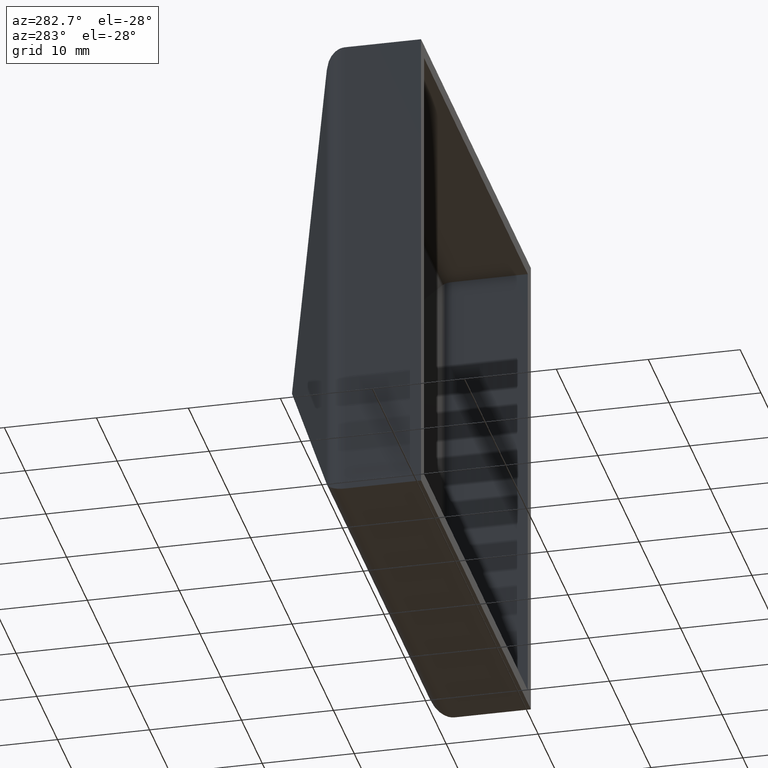
[diagram: clean part render]
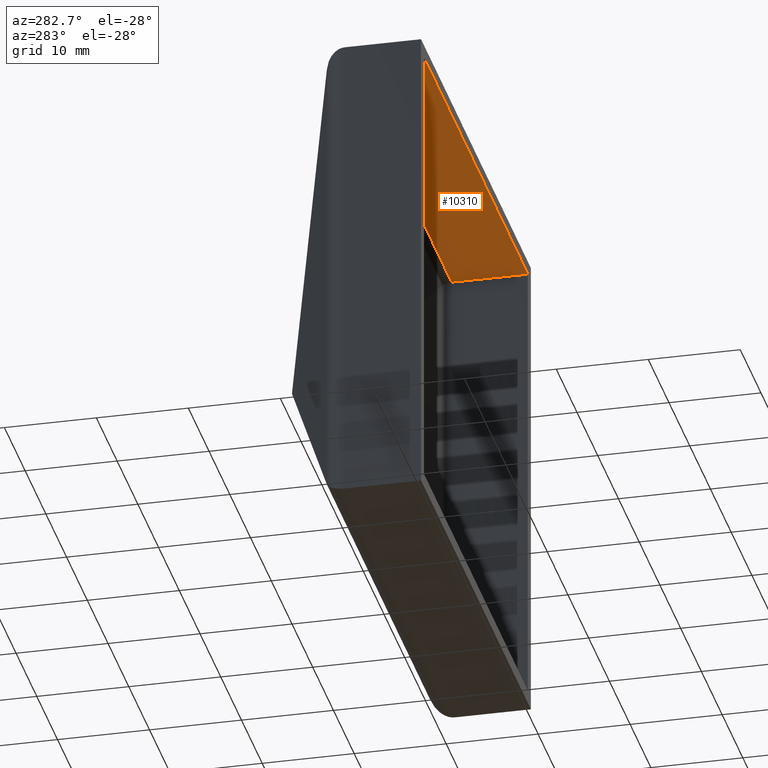
[diagram: same view with one face highlighted and labeled with its STEP entity id]
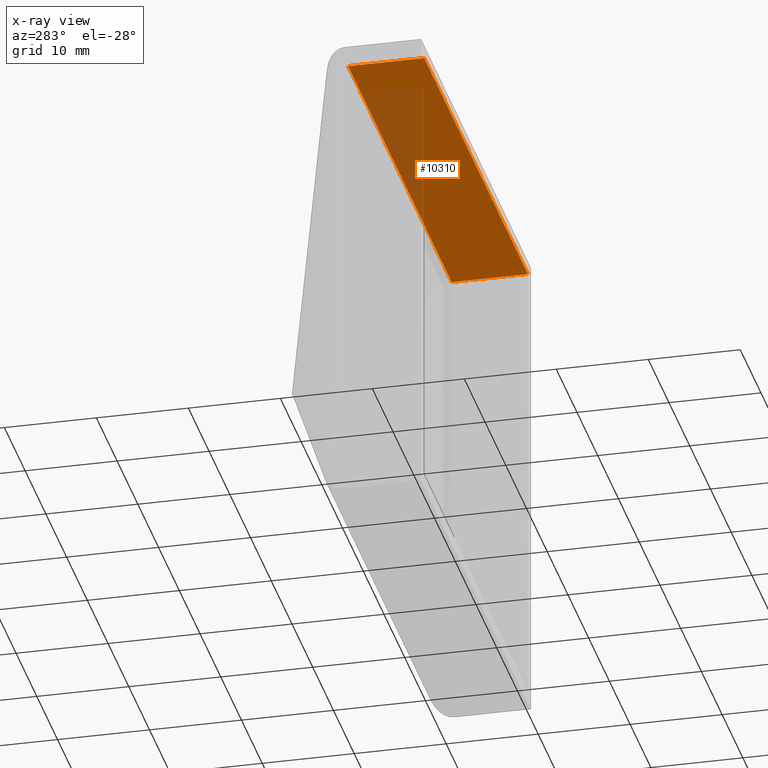
[diagram: x-ray of the same camera — body ghosted, the highlighted face saturated]
A machine part, auxiliary view. The second image highlights one B-rep face of the part: STEP entity #10310.
The next image is the same camera in x-ray: the body ghosted, the highlighted face saturated — about 26% of this face is hidden behind the body in this view.
In plain terms, the highlighted planar face has unit normal (0, 0, -1).
Its self-contained STEP definition (entity closure, byte-faithful):
#174 = ORIENTED_EDGE ( 'NONE', *, *, #8489, .F. ) ;
#427 = CARTESIAN_POINT ( 'NONE',  ( -26.49999999999999289, 25.00000000000000000, 25.00000000000000000 ) ) ;
#873 = CARTESIAN_POINT ( 'NONE',  ( -24.99999999999999289, 8.271739631613602484, 25.00000000000001421 ) ) ;
#1057 = ORIENTED_EDGE ( 'NONE', *, *, #9832, .F. ) ;
#1254 = DIRECTION ( 'NONE',  ( 1.000000000000000000, -0.000000000000000000, -4.440892098500625669E-16 ) ) ;
#1621 = FACE_OUTER_BOUND ( 'NONE', #2111, .T. ) ;
#1867 = DIRECTION ( 'NONE',  ( 0.000000000000000000, -1.000000000000000000, 0.000000000000000000 ) ) ;
#1979 = VERTEX_POINT ( 'NONE', #4930 ) ;
#2004 = VERTEX_POINT ( 'NONE', #873 ) ;
#2111 = EDGE_LOOP ( 'NONE', ( #10710, #8798, #174, #1057 ) ) ;
#2514 = CARTESIAN_POINT ( 'NONE',  ( 25.00000000000000000, 8.271739631613600707, 25.00000000000000000 ) ) ;
#3959 = CARTESIAN_POINT ( 'NONE',  ( -26.50000000000001066, 8.271739631613602484, 25.00000000000001421 ) ) ;
#4128 = VECTOR ( 'NONE', #1254, 1000.000000000000000 ) ;
#4241 = CARTESIAN_POINT ( 'NONE',  ( -26.49999999999999289, 0.000000000000000000, 25.00000000000000000 ) ) ;
#4385 = VECTOR ( 'NONE', #5910, 1000.000000000000000 ) ;
#4930 = CARTESIAN_POINT ( 'NONE',  ( 25.00000000000000355, 0.000000000000000000, 25.00000000000000000 ) ) ;
#5308 = DIRECTION ( 'NONE',  ( -1.000000000000000000, 0.000000000000000000, -0.000000000000000000 ) ) ;
#5351 = PLANE ( 'NONE',  #11122 ) ;
#5802 = VECTOR ( 'NONE', #9961, 1000.000000000000000 ) ;
#5910 = DIRECTION ( 'NONE',  ( 0.000000000000000000, -1.000000000000000000, 0.000000000000000000 ) ) ;
#6218 = LINE ( 'NONE', #6563, #9585 ) ;
#6563 = CARTESIAN_POINT ( 'NONE',  ( -24.99999999999998934, 25.00000000000000000, 25.00000000000000000 ) ) ;
#7061 = DIRECTION ( 'NONE',  ( 0.000000000000000000, 0.000000000000000000, -1.000000000000000000 ) ) ;
#7254 = LINE ( 'NONE', #3959, #4128 ) ;
#8489 = EDGE_CURVE ( 'NONE', #10783, #1979, #9745, .T. ) ;
#8798 = ORIENTED_EDGE ( 'NONE', *, *, #12139, .T. ) ;
#9124 = VERTEX_POINT ( 'NONE', #2514 ) ;
#9585 = VECTOR ( 'NONE', #1867, 1000.000000000000000 ) ;
#9745 = LINE ( 'NONE', #4241, #5802 ) ;
#9832 = EDGE_CURVE ( 'NONE', #2004, #10783, #6218, .T. ) ;
#9961 = DIRECTION ( 'NONE',  ( 1.000000000000000000, -0.000000000000000000, 0.000000000000000000 ) ) ;
#10310 = ADVANCED_FACE ( 'NONE', ( #1621 ), #5351, .T. ) ;
#10490 = CARTESIAN_POINT ( 'NONE',  ( 25.00000000000000355, 25.00000000000000000, 25.00000000000000000 ) ) ;
#10710 = ORIENTED_EDGE ( 'NONE', *, *, #10867, .T. ) ;
#10783 = VERTEX_POINT ( 'NONE', #12173 ) ;
#10867 = EDGE_CURVE ( 'NONE', #2004, #9124, #7254, .T. ) ;
#11122 = AXIS2_PLACEMENT_3D ( 'NONE', #427, #7061, #5308 ) ;
#11476 = LINE ( 'NONE', #10490, #4385 ) ;
#12139 = EDGE_CURVE ( 'NONE', #9124, #1979, #11476, .T. ) ;
#12173 = CARTESIAN_POINT ( 'NONE',  ( -24.99999999999998934, 0.000000000000000000, 25.00000000000000000 ) ) ;